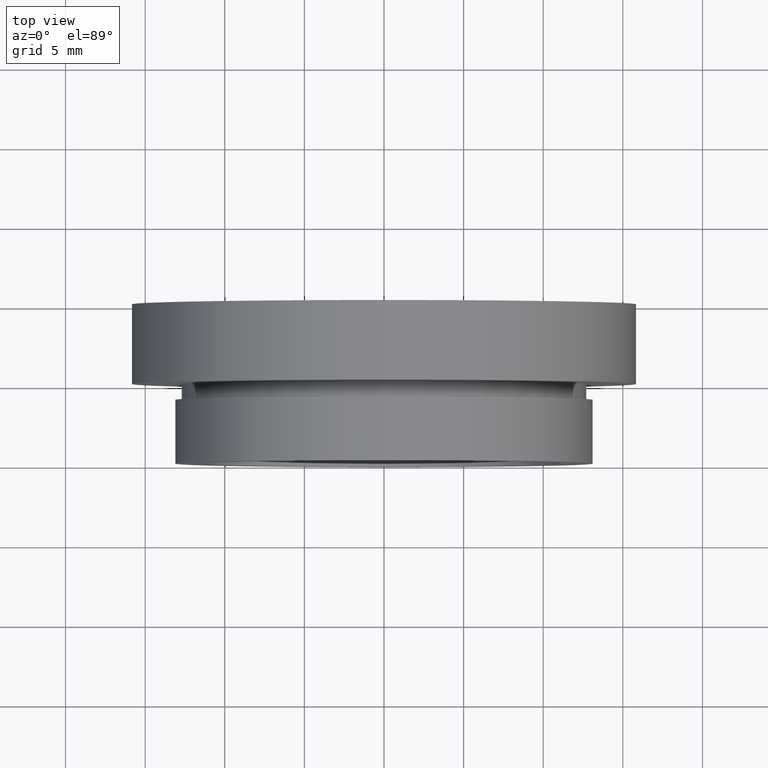
[diagram: clean part render]
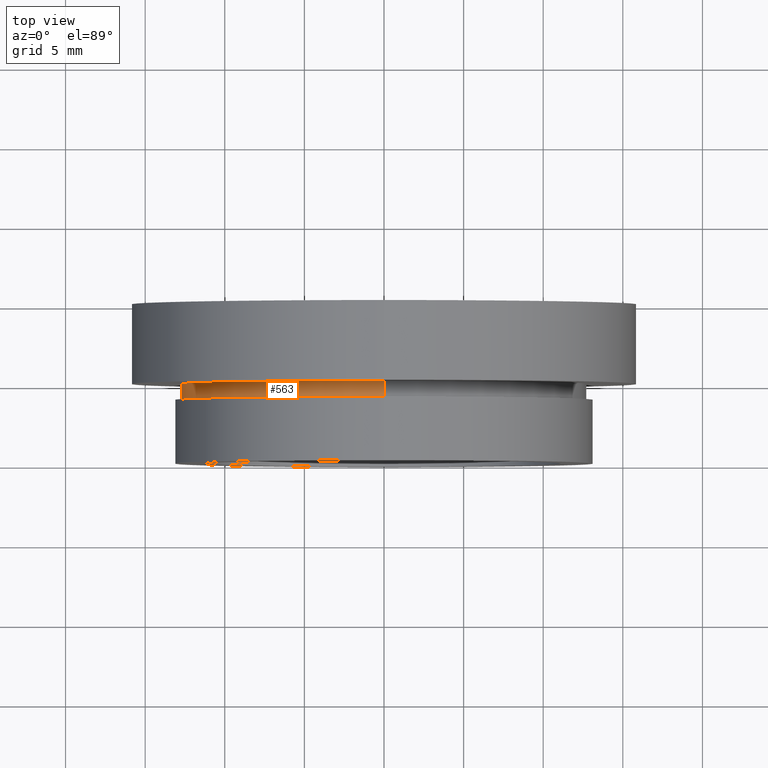
[diagram: same view with one face highlighted and labeled with its STEP entity id]
A machine part, top view. The second image highlights one B-rep face of the part: STEP entity #563.
In plain terms, the highlighted cylindrical surface (partial cylindrical patch) has radius 12.75 mm, axis along (-0, 1, -0).
Its self-contained STEP definition (entity closure, byte-faithful):
#5 = AXIS2_PLACEMENT_3D ( 'NONE', #67, #74, #57 ) ;
#16 = CYLINDRICAL_SURFACE ( 'NONE', #401, 12.75000000000000000 ) ;
#31 = LINE ( 'NONE', #63, #36 ) ;
#36 = VECTOR ( 'NONE', #102, 1000.000000000000000 ) ;
#43 = ORIENTED_EDGE ( 'NONE', *, *, #490, .F. ) ;
#57 = DIRECTION ( 'NONE',  ( 0.0000000000000000000, 0.0000000000000000000, 1.000000000000000000 ) ) ;
#61 = CIRCLE ( 'NONE', #371, 12.75000000000000000 ) ;
#63 = CARTESIAN_POINT ( 'NONE',  ( 0.0000000000000000000, 13.74468085106383300, 12.75000000000000000 ) ) ;
#65 = EDGE_CURVE ( 'NONE', #346, #292, #263, .T. ) ;
#67 = CARTESIAN_POINT ( 'NONE',  ( 0.0000000000000000000, 4.000000000000000000, 0.0000000000000000000 ) ) ;
#74 = DIRECTION ( 'NONE',  ( -0.0000000000000000000, 1.000000000000000000, -0.0000000000000000000 ) ) ;
#76 = ORIENTED_EDGE ( 'NONE', *, *, #532, .T. ) ;
#77 = EDGE_LOOP ( 'NONE', ( #43, #484, #76, #415 ) ) ;
#87 = CARTESIAN_POINT ( 'NONE',  ( 0.0000000000000000000, 5.000000000000000900, 12.75000000000000000 ) ) ;
#93 = CARTESIAN_POINT ( 'NONE',  ( 1.561424668912875100E-015, 4.000000000000000000, -12.75000000000000000 ) ) ;
#102 = DIRECTION ( 'NONE',  ( -0.0000000000000000000, 1.000000000000000000, -0.0000000000000000000 ) ) ;
#108 = DIRECTION ( 'NONE',  ( -0.0000000000000000000, 1.000000000000000000, -0.0000000000000000000 ) ) ;
#143 = EDGE_CURVE ( 'NONE', #309, #409, #61, .T. ) ;
#194 = DIRECTION ( 'NONE',  ( 0.0000000000000000000, 0.0000000000000000000, 1.000000000000000000 ) ) ;
#217 = CARTESIAN_POINT ( 'NONE',  ( 1.561424668912875100E-015, 5.000000000000000900, -12.75000000000000000 ) ) ;
#253 = LINE ( 'NONE', #414, #624 ) ;
#254 = CARTESIAN_POINT ( 'NONE',  ( 0.0000000000000000000, 4.000000000000000000, 12.75000000000000000 ) ) ;
#263 = CIRCLE ( 'NONE', #5, 12.75000000000000000 ) ;
#292 = VERTEX_POINT ( 'NONE', #254 ) ;
#309 = VERTEX_POINT ( 'NONE', #217 ) ;
#338 = CARTESIAN_POINT ( 'NONE',  ( 0.0000000000000000000, 13.74468085106383300, 0.0000000000000000000 ) ) ;
#346 = VERTEX_POINT ( 'NONE', #93 ) ;
#366 = DIRECTION ( 'NONE',  ( -0.0000000000000000000, 1.000000000000000000, -0.0000000000000000000 ) ) ;
#371 = AXIS2_PLACEMENT_3D ( 'NONE', #384, #393, #194 ) ;
#384 = CARTESIAN_POINT ( 'NONE',  ( 0.0000000000000000000, 5.000000000000000900, 0.0000000000000000000 ) ) ;
#393 = DIRECTION ( 'NONE',  ( -0.0000000000000000000, 1.000000000000000000, -0.0000000000000000000 ) ) ;
#401 = AXIS2_PLACEMENT_3D ( 'NONE', #338, #108, #434 ) ;
#409 = VERTEX_POINT ( 'NONE', #87 ) ;
#414 = CARTESIAN_POINT ( 'NONE',  ( 1.561424668912875100E-015, 13.74468085106383300, -12.75000000000000000 ) ) ;
#415 = ORIENTED_EDGE ( 'NONE', *, *, #143, .F. ) ;
#434 = DIRECTION ( 'NONE',  ( 0.0000000000000000000, 0.0000000000000000000, 1.000000000000000000 ) ) ;
#455 = FACE_OUTER_BOUND ( 'NONE', #77, .T. ) ;
#484 = ORIENTED_EDGE ( 'NONE', *, *, #65, .T. ) ;
#490 = EDGE_CURVE ( 'NONE', #346, #309, #253, .T. ) ;
#532 = EDGE_CURVE ( 'NONE', #292, #409, #31, .T. ) ;
#563 = ADVANCED_FACE ( 'NONE', ( #455 ), #16, .T. ) ;
#624 = VECTOR ( 'NONE', #366, 1000.000000000000000 ) ;